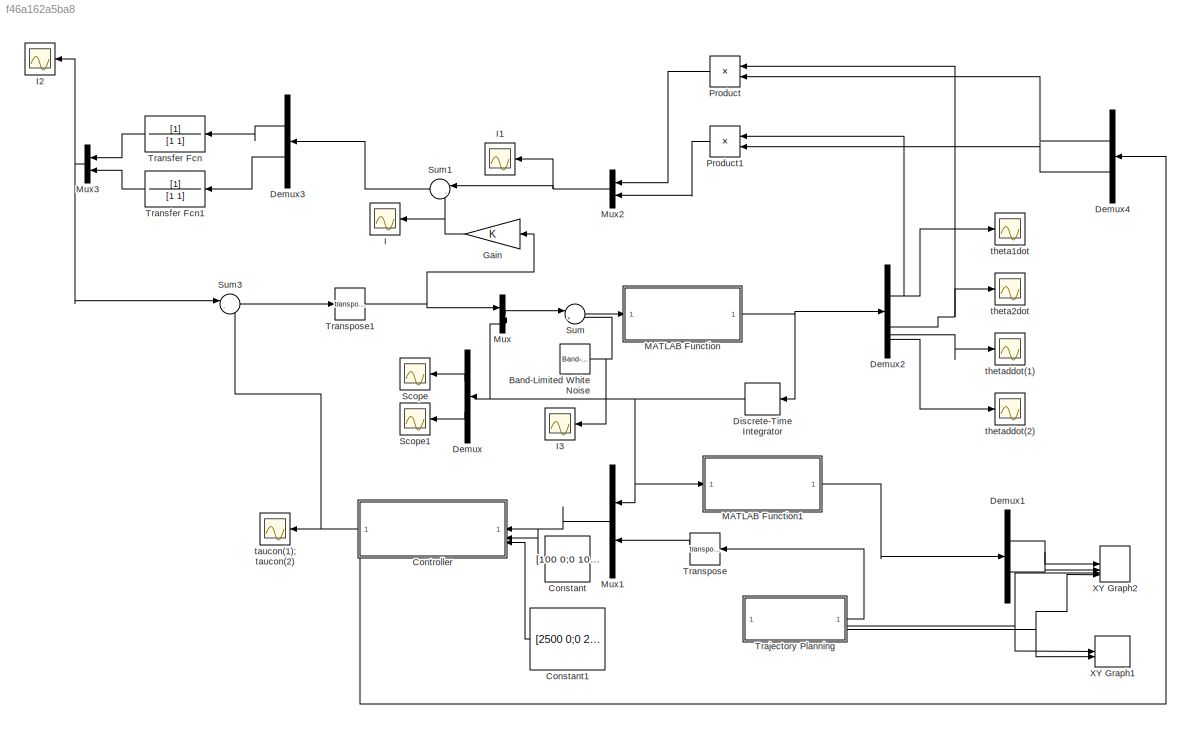
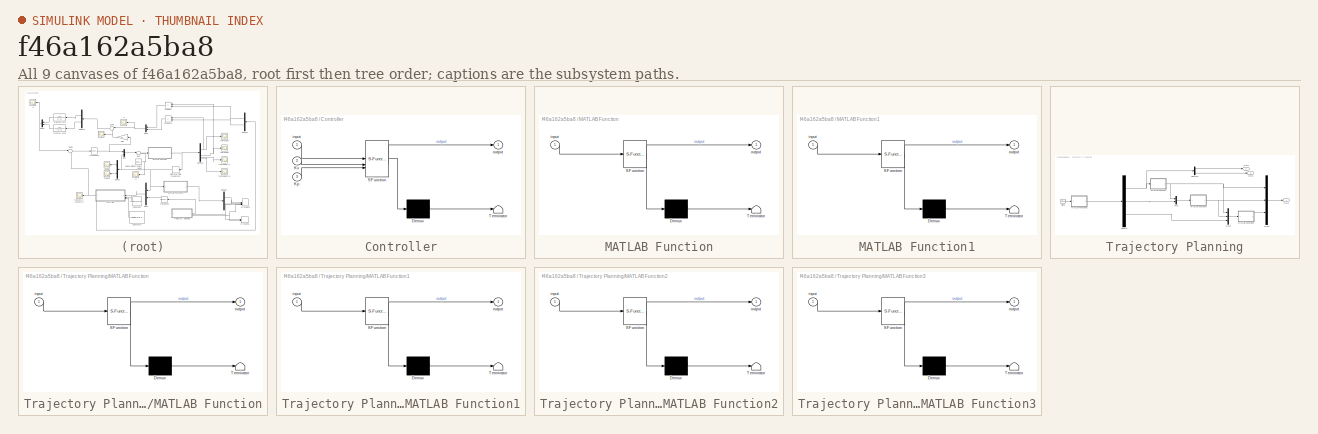
[diagram: thumbnail index - all 9 canvases of the model, root first then tree order]
MODEL slx_f46a162a5ba8
KIND model
CONFIG AbsTol = auto
CONFIG EnableMultiTasking = off
CONFIG FixedStep = 0.001
CONFIG MaxStep = auto
CONFIG MinStep = auto
CONFIG RelTol = 1e-3
CONFIG SampleTimeConstraint = Unconstrained
CONFIG SolverName = FixedStepAuto
CONFIG StartTime = 0.0
CONFIG StopTime = 20
BLOCK [Reference] Band-Limited White Noise  REF=simulink/Sources/Band-Limited
White Noise
  Commented = on
  SourceBlock = simulink/Sources/Band-Limited\nWhite Noise
  SourceType = Band-Limited White Noise.
BLOCK [Constant] Constant
  Value = [100 0;0 100]
BLOCK [Constant] Constant1
  Value = [2500 0;0 2500]
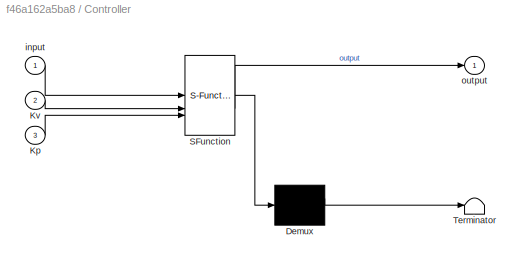
BLOCK [SubSystem] Controller
  ErrorFcn = Stateflow.Translate.translate
  LibrarySourceBlock = simulink/User-Defined\nFunctions/MATLAB Function
  PermitHierarchicalResolution = ExplicitOnly
  SFBlockType = MATLAB Function
  Tag = comp_torque
  TreatAsAtomicUnit = on
BLOCK [Demux] Controller/ Demux 
  Outputs = 1
BLOCK [S-Function] Controller/ SFunction 
  EnableBusSupport = on
  FunctionName = sf_sfun
  PortCounts = [3 2]
  SFcnIsStateOwnerBlock = off
  SFunctionDeploymentMode = off
  Tag = Stateflow S-Function 8
BLOCK [Terminator] Controller/ Terminator 
BLOCK [Inport] Controller/Kp
  Port = 3
BLOCK [Inport] Controller/Kv
  Port = 2
BLOCK [Inport] Controller/input
BLOCK [Outport] Controller/output
BLOCK [Demux] Demux
  Outputs = 2
BLOCK [Demux] Demux1
  Outputs = 2
BLOCK [Demux] Demux2
BLOCK [Demux] Demux3
  Outputs = 2
BLOCK [Demux] Demux4
  Outputs = 2
BLOCK [DiscreteIntegrator] Discrete-Time Integrator
  ICPrevOutput = DiscIntNeverNeededParam
  ICPrevScaledInput = DiscIntNeverNeededParam
  InitialConditionSetting = Auto
  SampleTime = -1
BLOCK [Gain] Gain
BLOCK [Scope] I
  Floating = off
  NumInputPorts = 1
  ScopeSpecificationString = Simulink.scopes.TimeScopeBlockCfg('CurrentConfiguration', extmgr.ConfigurationSet(extmgr.Configuration('Core','General UI',true),extmgr.Configuration('Core','Source UI',true),extmgr.Configuration('Sources','WiredSimulink',true,'DataLoggingVariableName','ScopeData1'),extmgr.Configuration('Visuals','Time Domain',true,'SerializedDisplays',{struct('MinYLimReal','-5.20534','MaxYLimReal','17.9443','YLab...<+1416ch>
BLOCK [Scope] I1
  Floating = off
  NumInputPorts = 1
  ScopeSpecificationString = Simulink.scopes.TimeScopeBlockCfg('CurrentConfiguration', extmgr.ConfigurationSet(extmgr.Configuration('Core','General UI',true),extmgr.Configuration('Core','Source UI',true),extmgr.Configuration('Sources','WiredSimulink',true,'DataLoggingVariableName','ScopeData2'),extmgr.Configuration('Visuals','Time Domain',true,'SerializedDisplays',{struct('MinYLimReal','-27902.42364','MaxYLimReal','9401.55172...<+1473ch>
BLOCK [Scope] I2
  Floating = off
  NumInputPorts = 1
  ScopeSpecificationString = Simulink.scopes.TimeScopeBlockCfg('CurrentConfiguration', extmgr.ConfigurationSet(extmgr.Configuration('Core','General UI',true),extmgr.Configuration('Core','Source UI',true),extmgr.Configuration('Sources','WiredSimulink',true,'DataLoggingVariableName','ScopeData3'),extmgr.Configuration('Visuals','Time Domain',true,'SerializedDisplays',{struct('MinYLimReal','-99.5336','MaxYLimReal','428.21901','YL...<+1450ch>
BLOCK [Scope] I3
  Floating = off
  NumInputPorts = 1
  ScopeSpecificationString = Simulink.scopes.TimeScopeBlockCfg('CurrentConfiguration', extmgr.ConfigurationSet(extmgr.Configuration('Core','General UI',true),extmgr.Configuration('Core','Source UI',true),extmgr.Configuration('Sources','WiredSimulink',true,'DataLoggingVariableName','ScopeData4'),extmgr.Configuration('Visuals','Time Domain',true,'SerializedDisplays',{struct('MinYLimReal','-1.00000','MaxYLimReal','1.00000','YLab...<+1460ch>
BLOCK [SubSystem] MATLAB Function
  ErrorFcn = Stateflow.Translate.translate
  LibrarySourceBlock = simulink/User-Defined\nFunctions/MATLAB Function
  PermitHierarchicalResolution = ExplicitOnly
  SFBlockType = MATLAB Function
  TreatAsAtomicUnit = on
BLOCK [Demux] MATLAB Function/ Demux 
  Outputs = 1
BLOCK [S-Function] MATLAB Function/ SFunction 
  EnableBusSupport = on
  FunctionName = sf_sfun
  PortCounts = [1 2]
  SFcnIsStateOwnerBlock = off
  SFunctionDeploymentMode = off
  Tag = Stateflow S-Function 5
BLOCK [Terminator] MATLAB Function/ Terminator 
BLOCK [Inport] MATLAB Function/input
BLOCK [Outport] MATLAB Function/output
BLOCK [SubSystem] MATLAB Function1
  ErrorFcn = Stateflow.Translate.translate
  LibrarySourceBlock = simulink/User-Defined\nFunctions/MATLAB Function
  PermitHierarchicalResolution = ExplicitOnly
  SFBlockType = MATLAB Function
  TreatAsAtomicUnit = on
BLOCK [Demux] MATLAB Function1/ Demux 
  Outputs = 1
BLOCK [S-Function] MATLAB Function1/ SFunction 
  EnableBusSupport = on
  FunctionName = sf_sfun
  PortCounts = [1 2]
  SFcnIsStateOwnerBlock = off
  SFunctionDeploymentMode = off
  Tag = Stateflow S-Function 6
BLOCK [Terminator] MATLAB Function1/ Terminator 
BLOCK [Inport] MATLAB Function1/input
BLOCK [Outport] MATLAB Function1/output
BLOCK [Mux] Mux
  DisplayOption = bar
  Inputs = [2,4]
BLOCK [Mux] Mux1
  DisplayOption = bar
  Inputs = 2
BLOCK [Mux] Mux2
  DisplayOption = bar
  Inputs = [1,1]
BLOCK [Mux] Mux3
  DisplayOption = bar
  Inputs = [1,1]
BLOCK [Product] Product
BLOCK [Product] Product1
BLOCK [Scope] Scope
  Floating = off
  NumInputPorts = 1
  ScopeSpecificationString = Simulink.scopes.TimeScopeBlockCfg('CurrentConfiguration', extmgr.ConfigurationSet(extmgr.Configuration('Core','General UI',true),extmgr.Configuration('Core','Source UI',true),extmgr.Configuration('Sources','WiredSimulink',true),extmgr.Configuration('Visuals','Time Domain',true,'SerializedDisplays',{struct('MinYLimReal','-3.40051','MaxYLimReal','3.24151','YLabelReal','','MinYLimMag','0.00000','MaxY...<+1371ch>
BLOCK [Scope] Scope1
  Floating = off
  NumInputPorts = 1
  ScopeSpecificationString = Simulink.scopes.TimeScopeBlockCfg('CurrentConfiguration', extmgr.ConfigurationSet(extmgr.Configuration('Core','General UI',true),extmgr.Configuration('Core','Source UI',true),extmgr.Configuration('Sources','WiredSimulink',true,'DataLoggingVariableName','ScopeData1'),extmgr.Configuration('Visuals','Time Domain',true,'SerializedDisplays',{struct('MinYLimReal','-3.3972','MaxYLimReal','2.8661','YLabel...<+1404ch>
BLOCK [Sum] Sum
  Inputs = |++
BLOCK [Sum] Sum1
  Inputs = |-+
BLOCK [Sum] Sum3
  Inputs = |-+
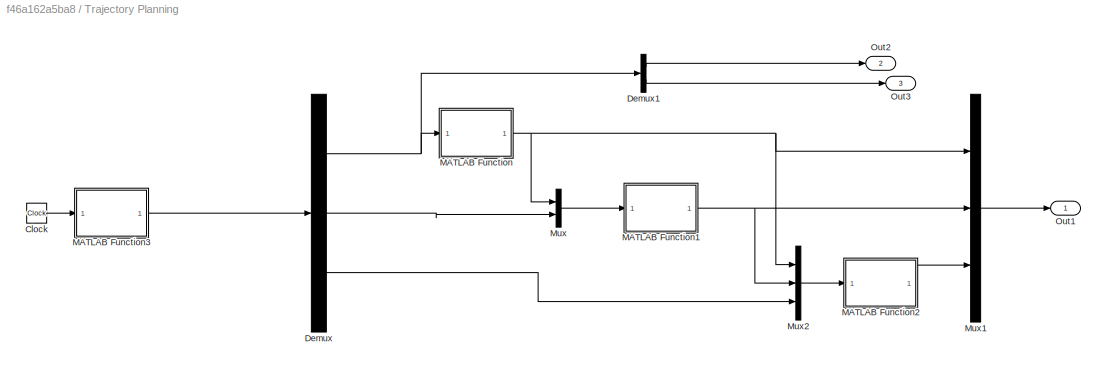
BLOCK [SubSystem] Trajectory Planning
BLOCK [Clock] Trajectory Planning/Clock
  Decimation = 100
  DisplayTime = on
BLOCK [Demux] Trajectory Planning/Demux
  Outputs = 3
BLOCK [Demux] Trajectory Planning/Demux1
  Outputs = 2
BLOCK [SubSystem] Trajectory Planning/MATLAB Function
  ErrorFcn = Stateflow.Translate.translate
  LibrarySourceBlock = simulink/User-Defined\nFunctions/MATLAB Function
  PermitHierarchicalResolution = ExplicitOnly
  SFBlockType = MATLAB Function
  TreatAsAtomicUnit = on
BLOCK [Demux] Trajectory Planning/MATLAB Function/ Demux 
  Outputs = 1
BLOCK [S-Function] Trajectory Planning/MATLAB Function/ SFunction 
  EnableBusSupport = on
  FunctionName = sf_sfun
  PortCounts = [1 2]
  SFcnIsStateOwnerBlock = off
  SFunctionDeploymentMode = off
  Tag = Stateflow S-Function 2
BLOCK [Terminator] Trajectory Planning/MATLAB Function/ Terminator 
BLOCK [Inport] Trajectory Planning/MATLAB Function/input
BLOCK [Outport] Trajectory Planning/MATLAB Function/output
BLOCK [SubSystem] Trajectory Planning/MATLAB Function1
  ErrorFcn = Stateflow.Translate.translate
  LibrarySourceBlock = simulink/User-Defined\nFunctions/MATLAB Function
  PermitHierarchicalResolution = ExplicitOnly
  SFBlockType = MATLAB Function
  TreatAsAtomicUnit = on
BLOCK [Demux] Trajectory Planning/MATLAB Function1/ Demux 
  Outputs = 1
BLOCK [S-Function] Trajectory Planning/MATLAB Function1/ SFunction 
  EnableBusSupport = on
  FunctionName = sf_sfun
  PortCounts = [1 2]
  SFcnIsStateOwnerBlock = off
  SFunctionDeploymentMode = off
  Tag = Stateflow S-Function 1
BLOCK [Terminator] Trajectory Planning/MATLAB Function1/ Terminator 
BLOCK [Inport] Trajectory Planning/MATLAB Function1/input
BLOCK [Outport] Trajectory Planning/MATLAB Function1/output
BLOCK [SubSystem] Trajectory Planning/MATLAB Function2
  ErrorFcn = Stateflow.Translate.translate
  LibrarySourceBlock = simulink/User-Defined\nFunctions/MATLAB Function
  PermitHierarchicalResolution = ExplicitOnly
  SFBlockType = MATLAB Function
  TreatAsAtomicUnit = on
BLOCK [Demux] Trajectory Planning/MATLAB Function2/ Demux 
  Outputs = 1
BLOCK [S-Function] Trajectory Planning/MATLAB Function2/ SFunction 
  EnableBusSupport = on
  FunctionName = sf_sfun
  PortCounts = [1 2]
  SFcnIsStateOwnerBlock = off
  SFunctionDeploymentMode = off
  Tag = Stateflow S-Function 3
BLOCK [Terminator] Trajectory Planning/MATLAB Function2/ Terminator 
BLOCK [Inport] Trajectory Planning/MATLAB Function2/input
BLOCK [Outport] Trajectory Planning/MATLAB Function2/output
BLOCK [SubSystem] Trajectory Planning/MATLAB Function3
  ErrorFcn = Stateflow.Translate.translate
  LibrarySourceBlock = simulink/User-Defined\nFunctions/MATLAB Function
  PermitHierarchicalResolution = ExplicitOnly
  SFBlockType = MATLAB Function
  TreatAsAtomicUnit = on
BLOCK [Demux] Trajectory Planning/MATLAB Function3/ Demux 
  Outputs = 1
BLOCK [S-Function] Trajectory Planning/MATLAB Function3/ SFunction 
  EnableBusSupport = on
  FunctionName = sf_sfun
  PortCounts = [1 2]
  SFcnIsStateOwnerBlock = off
  SFunctionDeploymentMode = off
  Tag = Stateflow S-Function 4
BLOCK [Terminator] Trajectory Planning/MATLAB Function3/ Terminator 
BLOCK [Inport] Trajectory Planning/MATLAB Function3/input
BLOCK [Outport] Trajectory Planning/MATLAB Function3/output
BLOCK [Mux] Trajectory Planning/Mux
  DisplayOption = bar
  Inputs = 2
BLOCK [Mux] Trajectory Planning/Mux1
  DisplayOption = bar
  Inputs = 3
BLOCK [Mux] Trajectory Planning/Mux2
  DisplayOption = bar
  Inputs = 3
BLOCK [Outport] Trajectory Planning/Out1
BLOCK [Outport] Trajectory Planning/Out2
  Port = 2
BLOCK [Outport] Trajectory Planning/Out3
  Port = 3
BLOCK [TransferFcn] Transfer Fcn
  Denominator = [1 1]
BLOCK [TransferFcn] Transfer Fcn1
  Denominator = [1 1]
BLOCK [Math] Transpose
  Operator = transpose
BLOCK [Math] Transpose1
  Operator = transpose
BLOCK [Record] XY Graph1
  CompatibilityTag = XY
  FileSettingsInternal = {"entries":[{"content":{"excelSettings":{"content":{},"type":"Streamout.ExcelSettings"}},"type":"Streamout.FileSettingStorage","uuid":""}],"packageUris":["http:\/\/schema.mathworks.com\/mf0\/streamout_blocks\/R2020a"],"version":"1.0"}
  Layout = [1 1]
  SignalsInternal = {"entries":[{"content":{"signals":[{"content":{"blockPath":[],"dimensions":[1,1],"domain":"","lineColor":"#77ac30","plots":[1],"port":1,"sid":[""],"signalID":896,"signalName":"Trajectory Planning:2"},"type":"RecordBlkView.Signal","uuid":""},{"content":{"blockPath":[],"dimensions":[1,1],"domain":"","lineColor":"#4dbeee","plots":[1],"port":2,"sid":[""],"signalID":900,"signalName":"Trajectory Plannin...<+192ch>
  VisualizationBindings = {"xyplotplugin":{"info":[{"series":[{"bindingParametersList":[{"parameter":"X-Axis","signalID":896,"signalName":"Trajectory Planning:2"},{"parameter":"Y-Axis","signalID":900,"signalName":"Trajectory Planning:3"}],"seriesID":3912}],"subplotID":1}]}}
BLOCK [Record] XY Graph2
  CompatibilityTag = XY
  FileSettingsInternal = {"entries":[{"content":{"excelSettings":{"content":{},"type":"Streamout.ExcelSettings"}},"type":"Streamout.FileSettingStorage","uuid":""}],"packageUris":["http:\/\/schema.mathworks.com\/mf0\/streamout_blocks\/R2020a"],"version":"1.0"}
  Layout = [1 1]
  SignalsInternal = {"entries":[{"content":{"signals":[{"content":{"blockPath":[],"dimensions":[1,1],"domain":"","lineColor":"#a2142f","plots":[1],"port":1,"sid":[""],"signalID":904,"signalName":"Demux1:1"},"type":"RecordBlkView.Signal","uuid":""},{"content":{"blockPath":[],"dimensions":[1,1],"domain":"","lineColor":"#139fff","plots":[1],"port":2,"sid":[""],"signalID":908,"signalName":"Demux1:2"},"type":"RecordBlkVie...<+578ch>
  VisualizationBindings = {"xyplotplugin":{"info":[{"series":[{"bindingParametersList":[{"parameter":"X-Axis","signalID":904,"signalName":"Demux1:1"},{"parameter":"Y-Axis","signalID":908,"signalName":"Demux1:2"}],"seriesID":2340},{"bindingParametersList":[{"parameter":"X-Axis","signalID":912,"signalName":"Trajectory Planning:2"},{"parameter":"Y-Axis","signalID":916,"signalName":"Trajectory Planning:3"}],"seriesID":45430}],...<+17ch>
  st = -1
BLOCK [Scope] taucon(1); taucon(2)
  Floating = off
  NumInputPorts = 1
  ScopeSpecificationString = Simulink.scopes.TimeScopeBlockCfg('CurrentConfiguration', extmgr.ConfigurationSet(extmgr.Configuration('Core','General UI',true),extmgr.Configuration('Core','Source UI',true),extmgr.Configuration('Sources','WiredSimulink',true,'DataLoggingVariableName','ScopeData2'),extmgr.Configuration('Visuals','Time Domain',true,'SerializedDisplays',{struct('MinYLimReal','-460.43416','MaxYLimReal','2602.4838','...<+1442ch>
BLOCK [Scope] theta1dot
  Floating = off
  NumInputPorts = 1
  ScopeSpecificationString = Simulink.scopes.TimeScopeBlockCfg('CurrentConfiguration', extmgr.ConfigurationSet(extmgr.Configuration('Core','General UI',true),extmgr.Configuration('Core','Source UI',true),extmgr.Configuration('Sources','WiredSimulink',true,'DataLoggingVariableName','ScopeData3'),extmgr.Configuration('Visuals','Time Domain',true,'SerializedDisplays',{struct('MinYLimReal','-0.61503','MaxYLimReal','0.80899','YLab...<+1422ch>
BLOCK [Scope] theta2dot
  Floating = off
  NumInputPorts = 1
  ScopeSpecificationString = Simulink.scopes.TimeScopeBlockCfg('CurrentConfiguration', extmgr.ConfigurationSet(extmgr.Configuration('Core','General UI',true),extmgr.Configuration('Core','Source UI',true),extmgr.Configuration('Sources','WiredSimulink',true,'DataLoggingVariableName','ScopeData4'),extmgr.Configuration('Visuals','Time Domain',true,'SerializedDisplays',{struct('MinYLimReal','-0.86358','MaxYLimReal','0.22328','YLab...<+1422ch>
BLOCK [Scope] thetaddot(1)
  Floating = off
  NumInputPorts = 1
  ScopeSpecificationString = Simulink.scopes.TimeScopeBlockCfg('CurrentConfiguration', extmgr.ConfigurationSet(extmgr.Configuration('Core','General UI',true),extmgr.Configuration('Core','Source UI',true),extmgr.Configuration('Sources','WiredSimulink',true,'DataLoggingVariableName','ScopeData5'),extmgr.Configuration('Visuals','Time Domain',true,'SerializedDisplays',{struct('MinYLimReal','-4.79399','MaxYLimReal','10.40466','YLa...<+1414ch>
BLOCK [Scope] thetaddot(2)
  Floating = off
  NumInputPorts = 1
  ScopeSpecificationString = Simulink.scopes.TimeScopeBlockCfg('CurrentConfiguration', extmgr.ConfigurationSet(extmgr.Configuration('Core','General UI',true),extmgr.Configuration('Core','Source UI',true),extmgr.Configuration('Sources','WiredSimulink',true,'DataLoggingVariableName','ScopeData6'),extmgr.Configuration('Visuals','Time Domain',true,'SerializedDisplays',{struct('MinYLimReal','-13.11954','MaxYLimReal','5.7667','YLab...<+1424ch>
NET Band-Limited White Noise:1 -> I3:1, Sum:2
LINE Constant1:1 -> Controller:3
LINE Constant:1 -> Controller:2
NET Controller:1 -> Demux4:1, Sum3:2, taucon(1); taucon(2):1
LINE Demux1:1 -> XY Graph2:1
LINE Demux1:2 -> XY Graph2:2
NET Demux2:1 -> Product1:1, theta1dot:1
NET Demux2:2 -> Product:1, theta2dot:1
LINE Demux2:3 -> thetaddot(1):1
LINE Demux2:4 -> thetaddot(2):1
LINE Demux3:1 -> Transfer Fcn:1
LINE Demux3:2 -> Transfer Fcn1:1
LINE Demux4:1 -> Product:2
LINE Demux4:2 -> Product1:2
LINE Demux:1 -> Scope:1
LINE Demux:2 -> Scope1:1
NET Discrete-Time Integrator:1 -> Demux:1, MATLAB Function1:1, Mux1:1, Mux:2
NET Gain:1 -> I:1, Sum1:2
LINE MATLAB Function1:1 -> Demux1:1
NET MATLAB Function:1 -> Demux2:1, Discrete-Time Integrator:1
LINE Mux1:1 -> Controller:1
NET Mux2:1 -> I1:1, Sum1:1
NET Mux3:1 -> I2:1, Sum3:1
LINE Mux:1 -> Sum:1
LINE Product1:1 -> Mux2:2
LINE Product:1 -> Mux2:1
LINE Sum1:1 -> Demux3:1
LINE Sum3:1 -> Transpose1:1
LINE Sum:1 -> MATLAB Function:1
LINE Trajectory Planning/Clock:1 -> Trajectory Planning/MATLAB Function3:1
LINE Trajectory Planning/Demux1:1 -> Trajectory Planning/Out2:1
LINE Trajectory Planning/Demux1:2 -> Trajectory Planning/Out3:1
NET Trajectory Planning/Demux:1 -> Trajectory Planning/Demux1:1, Trajectory Planning/MATLAB Function:1
LINE Trajectory Planning/Demux:2 -> Trajectory Planning/Mux:2
LINE Trajectory Planning/Demux:3 -> Trajectory Planning/Mux2:3
NET Trajectory Planning/MATLAB Function1:1 -> Trajectory Planning/Mux1:2, Trajectory Planning/Mux2:2
LINE Trajectory Planning/MATLAB Function2:1 -> Trajectory Planning/Mux1:3
LINE Trajectory Planning/MATLAB Function3:1 -> Trajectory Planning/Demux:1
NET Trajectory Planning/MATLAB Function:1 -> Trajectory Planning/Mux1:1, Trajectory Planning/Mux2:1, Trajectory Planning/Mux:1
LINE Trajectory Planning/Mux1:1 -> Trajectory Planning/Out1:1
LINE Trajectory Planning/Mux2:1 -> Trajectory Planning/MATLAB Function2:1
LINE Trajectory Planning/Mux:1 -> Trajectory Planning/MATLAB Function1:1
LINE Trajectory Planning:1 -> Transpose:1
NET Trajectory Planning:2 -> XY Graph1:1, XY Graph2:3
NET Trajectory Planning:3 -> XY Graph1:2, XY Graph2:4
LINE Transfer Fcn1:1 -> Mux3:2
LINE Transfer Fcn:1 -> Mux3:1
NET Transpose1:1 -> Gain:1, Mux:1
LINE Transpose:1 -> Mux1:2
note: NET lines group one-source signal fan-out (src -> all destinations, sorted); 1:1 wires keep LINE
CHART Trajectory Planning/MATLAB Function states=1 transitions=1
  STATE_LABEL 'eML_blk_kernel()'
  STATE_LABEL 'SCRIPT:\nfunction output =angle(input)\nx=input(1);\ny=input(2);\nl1=0.5;\nl2=0.5;\na=(x^2+y^2+l1^2+l2^2)^2;\nb=2*((x^2+y^2)^2+l1^4+l2^4);\nk=sqrt(abs(a-b));\ntheta1=atan2(y,x)+atan2(k,x^2+y^2+l1^2-l2^2);\ntheta2=-atan2(k,x^2+y^2-l1^2-l2^2);\noutput=[theta1;theta2]; '
CHART Trajectory Planning/MATLAB Function2 states=1 transitions=1
  STATE_LABEL 'eML_blk_kernel()'
  STATE_LABEL 'SCRIPT:\nfunction output =angleddot(input)\ntheta1=input(1);\ntheta2=input(2);\ntheta1dot=input(3);\ntheta2dot=input(4);\nxddot=input(5);\nyddot=input(6);\nxyddot=[xddot;yddot];\nl1=0.5;\nl2=0.5;\nA=[-l1*sin(theta1)-l2*sin(theta1+theta2) -l2*sin(theta1+theta2)\n l1*cos(theta1)+l2*cos(theta1+theta2) l2*cos(theta1+theta2)];\nB11=-l1*cos(theta1)*theta1dot^2-l2*cos(theta1+theta2)*(theta1dot+theta2dot)^2;\nB21=-l1*s...<+214ch>'
CHART Trajectory Planning/MATLAB Function3 states=1 transitions=1
  STATE_LABEL 'eML_blk_kernel()'
  STATE_LABEL 'SCRIPT:\nfunction output =xytrajectory(input)\nt1=input;\nomega = 0.5;\nphi=omega*t1;\nx=0.2*cos(phi)+0.3;\ny=0.2*sin(phi)+0.3;\nxdot=-0.2*sin(phi);\nydot=0.2*cos(phi);\nxddot=-0.2*cos(phi);\nyddot=-0.2*sin(phi);\noutput=[x;y;xdot;ydot;xddot;yddot]; '
CHART MATLAB Function states=1 transitions=1
  STATE_LABEL 'eML_blk_kernel()'
  STATE_LABEL 'SCRIPT:\nfunction output =Inverse_Dynamics(input)\n\n\nm1 = 1.0;\nm2 = 1.0;\n\nb1 = 0\n\nb2 = 0\n\nl1 = 0.5\n\nl2 = 0.5\n\ng = 9.81;\ntorque = [input(1); input(2)];\ntheta1 = input(3);\ntheta2 = input(4);\ntheta1dot = input(5);\ntheta2dot = input(6);\nM11=(m1+m2)*l1^2+m2*l2^2+2*m2*l1*l2*cos(theta2);\nM12= m2*l2^2+m2*l1*l2*cos(theta2);\nM21=m2*l2^2+m2*l1*l2*cos(theta2);\nM22=m2*l2^2;\nM = [M11 M12; M21 M22];\nV11=-m2*l1*l2*...<+324ch>'
CHART MATLAB Function1 states=1 transitions=1
  STATE_LABEL 'eML_blk_kernel()'
  STATE_LABEL 'SCRIPT:\nfunction output =Direct_Kinematics(input)\ntheta1=input(1);\ntheta2=input(2);\nl1=0.5; \nl2=0.5;\nx=l1*cos(theta1)+l2*cos(theta1+theta2);\ny=l1*sin(theta1)+l2*sin(theta1+theta2);\noutput=[x;y];'
CHART Controller states=1 transitions=1
  STATE_LABEL 'eML_blk_kernel()'
  STATE_LABEL 'SCRIPT:\nfunction output =Controller_torque(input,Kv,Kp)\ntheta1=input(1);\ntheta2=input(2);\ntheta1dot=input(3);\ntheta2dot=input(4);\nthetad1=input(5);\nthetad2=input(6);\nthetad1dot=input(7);\nthetad2dot=input(8);\nthetad1ddot=input(9);\nthetad2ddot=input(10);\n%Kv=[2 0;0 2];\n%Kp=[6 0;0 6];\nm1 = 1.0;\nm2 = 1.0;\nb1 = 0;\nb2 = 0;\nl1 = 0.5;\nl2 = 0.5;\ng = 9.81;\nM11=(m1+m2)*l1^2+m2*l2^2+2*m2*l1*l2*cos(theta2);\nM1...<+628ch>'
CHART Trajectory Planning/MATLAB Function1 states=1 transitions=1
  STATE_LABEL 'eML_blk_kernel()'
  STATE_LABEL 'SCRIPT:\nfunction output =angledot(input)\ntheta1=input(1);\ntheta2=input(2);\nxdot=input(3);\nydot=input(4);\nxydot=[xdot;ydot];\nl1=0.5;\nl2=0.5;\nA=[-l1*sin(theta1)-l2*sin(theta1+theta2) -l2*sin(theta1+theta2)\n l1*cos(theta1)+l2*cos(theta1+theta2) l2*cos(theta1+theta2)];\nif det(A)<=0.001\n thetadot=[0;0];\nelse\n thetadot=inv(A)*xydot;\nend;\noutput=thetadot; '
CHART  states=0 transitions=0
CHART  states=0 transitions=0
CHART  states=0 transitions=0
CHART  states=0 transitions=0
CHART  states=0 transitions=0
CHART  states=0 transitions=0
CHART  states=0 transitions=0
